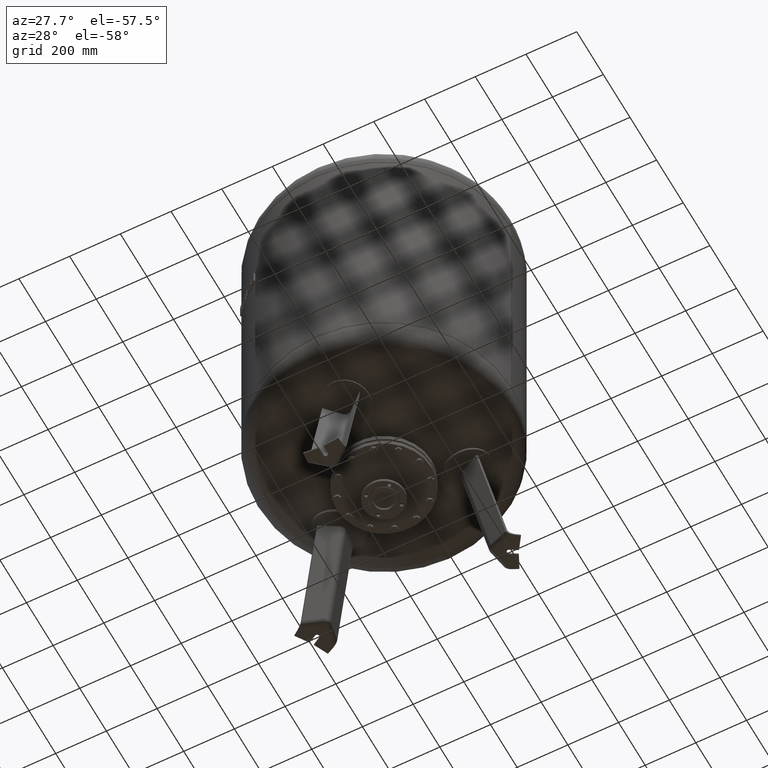
[diagram: clean part render]
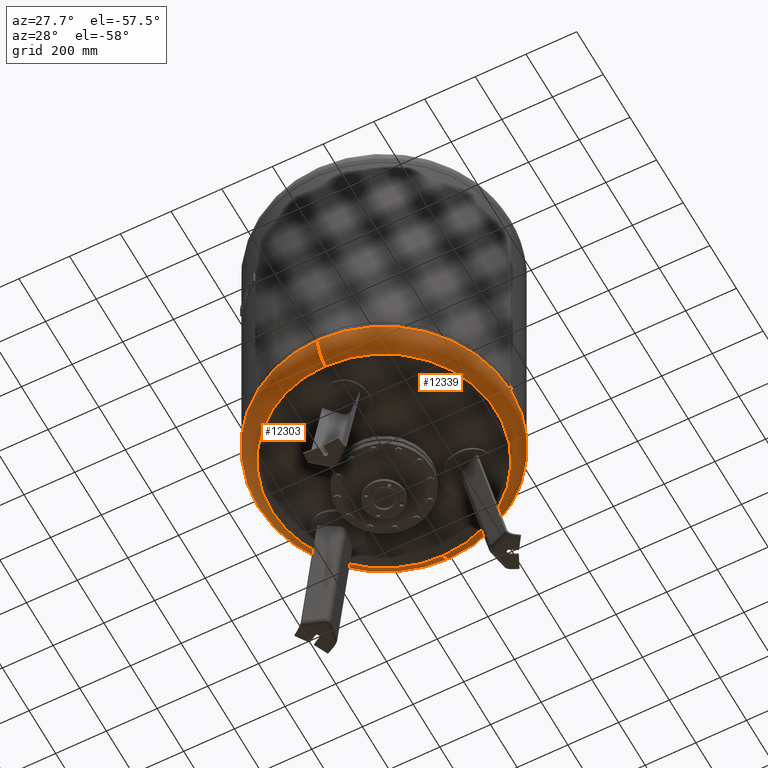
[diagram: same view with one multi-face feature highlighted, each face labeled with its STEP entity id]
A machine part, auxiliary view. The highlighted faces form ONE feature: a constant-radius fillet chain: 2 tangent blend faces with common blend radius 100.6 mm. The faces share edges in the B-rep.
Their STEP definitions:
[1] entity #12339 (Torus):
#12225=CARTESIAN_POINT('',(500.0,2.569315E-014,653.455355072719500));
#12226=VERTEX_POINT('',#12225);
#12233=CARTESIAN_POINT('',(-6.123032E-014,499.999999999999940,653.455355072719610));
#12234=VERTEX_POINT('',#12233);
#12235=CARTESIAN_POINT('',(-2.595210E-014,-3.553717E-014,653.455355072719500));
#12236=DIRECTION('',(0.0,0.0,1.0));
#12237=DIRECTION('',(-1.0,0.0,0.0));
#12238=AXIS2_PLACEMENT_3D('',#12235,#12236,#12237);
#12239=CIRCLE('',#12238,500.0);
#12240=EDGE_CURVE('',#12226,#12234,#12239,.T.);
#12257=CARTESIAN_POINT('',(3.381269E-030,-500.000000000000060,653.455355072719390));
#12258=VERTEX_POINT('',#12257);
#12259=CARTESIAN_POINT('',(1.211146E-014,-443.777777777777600,563.172616747466120));
#12260=VERTEX_POINT('',#12259);
#12261=CARTESIAN_POINT('',(0.0,-399.399999999999980,653.455355072719500));
#12262=DIRECTION('',(1.0,0.0,0.0));
#12263=DIRECTION('',(0.0,-1.0,0.0));
#12264=AXIS2_PLACEMENT_3D('',#12261,#12262,#12263);
#12265=CIRCLE('',#12264,100.600000000000010);
#12266=EDGE_CURVE('',#12258,#12260,#12265,.T.);
#12276=CARTESIAN_POINT('',(-4.223385E-014,443.777777777777600,563.172616747466350));
#12277=VERTEX_POINT('',#12276);
#12278=CARTESIAN_POINT('',(-4.891078E-014,399.399999999999860,653.455355072719730));
#12279=DIRECTION('',(-1.0,0.0,0.0));
#12280=DIRECTION('',(0.0,1.0,0.0));
#12281=AXIS2_PLACEMENT_3D('',#12278,#12279,#12280);
#12282=CIRCLE('',#12281,100.600000000000010);
#12283=EDGE_CURVE('',#12234,#12277,#12282,.T.);
#12311=CARTESIAN_POINT('',(-1.384064E-014,-1.895250E-014,563.172616747466240));
#12312=DIRECTION('',(0.0,0.0,1.0));
#12313=DIRECTION('',(-1.0,0.0,0.0));
#12314=AXIS2_PLACEMENT_3D('',#12311,#12312,#12313);
#12315=CIRCLE('',#12314,443.777777777777600);
#12316=EDGE_CURVE('',#12260,#12277,#12315,.T.);
#12321=CARTESIAN_POINT('',(0.0,-3.553717E-014,653.455355072719610));
#12322=DIRECTION('',(-1.341503E-016,-1.836970E-016,1.0));
#12323=DIRECTION('',(0.0,-1.0,0.0));
#12324=AXIS2_PLACEMENT_3D('',#12321,#12322,#12323);
#12325=TOROIDAL_SURFACE('',#12324,399.399999999999920,100.600000000000010);
#12326=ORIENTED_EDGE('',*,*,#12266,.T.);
#12327=ORIENTED_EDGE('',*,*,#12316,.T.);
#12328=ORIENTED_EDGE('',*,*,#12283,.F.);
#12329=ORIENTED_EDGE('',*,*,#12240,.F.);
#12330=CARTESIAN_POINT('',(-2.595210E-014,-3.553717E-014,653.455355072719500));
#12331=DIRECTION('',(0.0,0.0,1.0));
#12332=DIRECTION('',(-1.0,0.0,0.0));
#12333=AXIS2_PLACEMENT_3D('',#12330,#12331,#12332);
#12334=CIRCLE('',#12333,500.0);
#12335=EDGE_CURVE('',#12258,#12226,#12334,.T.);
#12336=ORIENTED_EDGE('',*,*,#12335,.F.);
#12337=EDGE_LOOP('',(#12326,#12327,#12328,#12329,#12336));
#12338=FACE_OUTER_BOUND('',#12337,.T.);
#12339=ADVANCED_FACE('',(#12338),#12325,.T.);
[2] entity #12303 (Torus):
#12208=CARTESIAN_POINT('',(-500.0,-3.553717E-014,653.455355072719390));
#12209=VERTEX_POINT('',#12208);
#12233=CARTESIAN_POINT('',(-6.123032E-014,499.999999999999940,653.455355072719610));
#12234=VERTEX_POINT('',#12233);
#12242=CARTESIAN_POINT('',(-2.595210E-014,-3.553717E-014,653.455355072719500));
#12243=DIRECTION('',(0.0,0.0,1.0));
#12244=DIRECTION('',(-1.0,0.0,0.0));
#12245=AXIS2_PLACEMENT_3D('',#12242,#12243,#12244);
#12246=CIRCLE('',#12245,500.0);
#12247=EDGE_CURVE('',#12234,#12209,#12246,.T.);
#12252=CARTESIAN_POINT('',(0.0,-3.553717E-014,653.455355072719610));
#12253=DIRECTION('',(-1.341503E-016,-1.836970E-016,1.0));
#12254=DIRECTION('',(0.0,-1.0,0.0));
#12255=AXIS2_PLACEMENT_3D('',#12252,#12253,#12254);
#12256=TOROIDAL_SURFACE('',#12255,399.399999999999920,100.600000000000010);
#12257=CARTESIAN_POINT('',(3.381269E-030,-500.000000000000060,653.455355072719390));
#12258=VERTEX_POINT('',#12257);
#12259=CARTESIAN_POINT('',(1.211146E-014,-443.777777777777600,563.172616747466120));
#12260=VERTEX_POINT('',#12259);
#12261=CARTESIAN_POINT('',(0.0,-399.399999999999980,653.455355072719500));
#12262=DIRECTION('',(1.0,0.0,0.0));
#12263=DIRECTION('',(0.0,-1.0,0.0));
#12264=AXIS2_PLACEMENT_3D('',#12261,#12262,#12263);
#12265=CIRCLE('',#12264,100.600000000000010);
#12266=EDGE_CURVE('',#12258,#12260,#12265,.T.);
#12267=ORIENTED_EDGE('',*,*,#12266,.F.);
#12268=CARTESIAN_POINT('',(-2.595210E-014,-3.553717E-014,653.455355072719500));
#12269=DIRECTION('',(0.0,0.0,1.0));
#12270=DIRECTION('',(-1.0,0.0,0.0));
#12271=AXIS2_PLACEMENT_3D('',#12268,#12269,#12270);
#12272=CIRCLE('',#12271,500.0);
#12273=EDGE_CURVE('',#12209,#12258,#12272,.T.);
#12274=ORIENTED_EDGE('',*,*,#12273,.F.);
#12275=ORIENTED_EDGE('',*,*,#12247,.F.);
#12276=CARTESIAN_POINT('',(-4.223385E-014,443.777777777777600,563.172616747466350));
#12277=VERTEX_POINT('',#12276);
#12278=CARTESIAN_POINT('',(-4.891078E-014,399.399999999999860,653.455355072719730));
#12279=DIRECTION('',(-1.0,0.0,0.0));
#12280=DIRECTION('',(0.0,1.0,0.0));
#12281=AXIS2_PLACEMENT_3D('',#12278,#12279,#12280);
#12282=CIRCLE('',#12281,100.600000000000010);
#12283=EDGE_CURVE('',#12234,#12277,#12282,.T.);
#12284=ORIENTED_EDGE('',*,*,#12283,.T.);
#12285=CARTESIAN_POINT('',(-443.777777777777600,-1.895250E-014,563.172616747466240));
#12286=VERTEX_POINT('',#12285);
#12287=CARTESIAN_POINT('',(-1.384064E-014,-1.895250E-014,563.172616747466240));
#12288=DIRECTION('',(0.0,0.0,1.0));
#12289=DIRECTION('',(-1.0,0.0,0.0));
#12290=AXIS2_PLACEMENT_3D('',#12287,#12288,#12289);
#12291=CIRCLE('',#12290,443.777777777777600);
#12292=EDGE_CURVE('',#12277,#12286,#12291,.T.);
#12293=ORIENTED_EDGE('',*,*,#12292,.T.);
#12294=CARTESIAN_POINT('',(-1.384064E-014,-1.895250E-014,563.172616747466240));
#12295=DIRECTION('',(0.0,0.0,1.0));
#12296=DIRECTION('',(-1.0,0.0,0.0));
#12297=AXIS2_PLACEMENT_3D('',#12294,#12295,#12296);
#12298=CIRCLE('',#12297,443.777777777777600);
#12299=EDGE_CURVE('',#12286,#12260,#12298,.T.);
#12300=ORIENTED_EDGE('',*,*,#12299,.T.);
#12301=EDGE_LOOP('',(#12267,#12274,#12275,#12284,#12293,#12300));
#12302=FACE_OUTER_BOUND('',#12301,.T.);
#12303=ADVANCED_FACE('',(#12302),#12256,.T.);